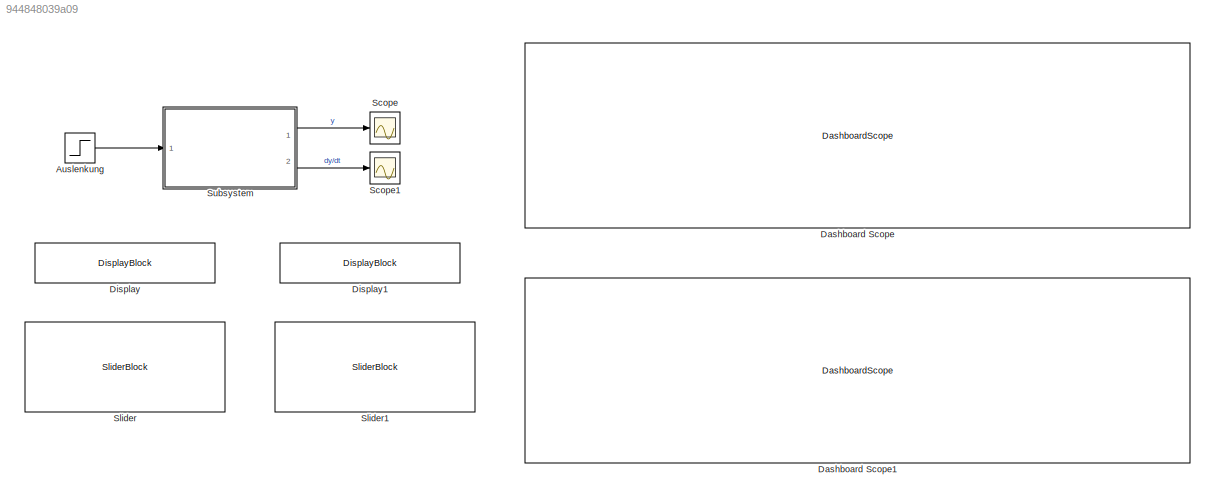
MODEL slx_944848039a09
KIND model
CONFIG AbsTol = auto
CONFIG EnableMultiTasking = off
CONFIG FixedStep = auto
CONFIG MaxStep = auto
CONFIG MinStep = auto
CONFIG RelTol = 1e-3
CONFIG SampleTimeConstraint = Unconstrained
CONFIG SolverName = VariableStepAuto
CONFIG StartTime = 0.0
CONFIG StopTime = 10.0
BLOCK [Step] Auslenkung
  SampleTime = 0
BLOCK [DashboardScope] Dashboard Scope
BLOCK [DashboardScope] Dashboard Scope1
BLOCK [DisplayBlock] Display
  Format = Custom
  FormatString = b = %d
  LabelPosition = Hide
  Transparency = 1
BLOCK [DisplayBlock] Display1
  Format = Custom
  FormatString = a = %d
  LabelPosition = Hide
  Transparency = 1
BLOCK [Scope] Scope
  Floating = off
  NumInputPorts = 1
  Ports = [1]
  ScopeSpecificationString = Simulink.scopes.TimeScopeBlockCfg('CurrentConfiguration', extmgr.ConfigurationSet(extmgr.Configuration('Core','General UI',true),extmgr.Configuration('Core','Source UI',true),extmgr.Configuration('Sources','WiredSimulink',true),extmgr.Configuration('Visuals','Time Domain',true),extmgr.Configuration('Tools','Plot Navigation',true),extmgr.Configuration('Tools','Measurements',true)),'Version','2022a'...<+1ch>
BLOCK [Scope] Scope1
  Floating = off
  NumInputPorts = 1
  Ports = [1]
  ScopeSpecificationString = Simulink.scopes.TimeScopeBlockCfg('CurrentConfiguration', extmgr.ConfigurationSet(extmgr.Configuration('Core','General UI',true),extmgr.Configuration('Core','Source UI',true),extmgr.Configuration('Sources','WiredSimulink',true,'DataLoggingVariableName','ScopeData1'),extmgr.Configuration('Visuals','Time Domain',true),extmgr.Configuration('Tools','Plot Navigation',true),extmgr.Configuration('Tools',...<+40ch>
BLOCK [SliderBlock] Slider
  LabelPosition = Bottom
  ScaleMax = 1
  ScaleMin = -1
BLOCK [SliderBlock] Slider1
  LabelPosition = Bottom
  ScaleMax = 10
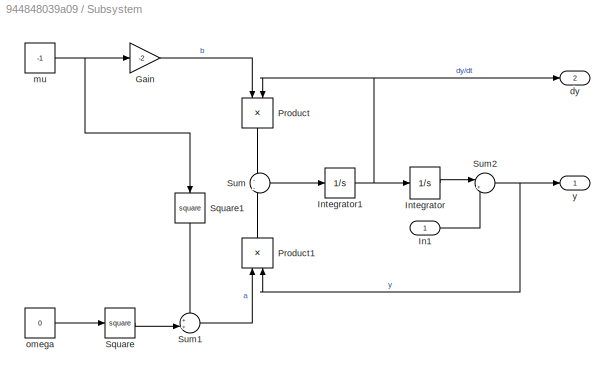
BLOCK [SubSystem] Subsystem
  Ports = [1, 2]
  RequestExecContextInheritance = off
BLOCK [Gain] Subsystem/Gain
  Gain = -2
BLOCK [Inport] Subsystem/In1
BLOCK [Integrator] Subsystem/Integrator
  Ports = [1, 1]
BLOCK [Integrator] Subsystem/Integrator1
  Ports = [1, 1]
BLOCK [Product] Subsystem/Product
  NameLocation = left
  Ports = [2, 1]
BLOCK [Product] Subsystem/Product1
  NameLocation = right
  Ports = [2, 1]
BLOCK [Math] Subsystem/Square
  Operator = square
  Ports = [1, 1]
BLOCK [Math] Subsystem/Square1
  NameLocation = left
  Operator = square
  Ports = [1, 1]
BLOCK [Sum] Subsystem/Sum
  Inputs = -|-
  Ports = [2, 1]
BLOCK [Sum] Subsystem/Sum1
  Inputs = ++|
  Ports = [2, 1]
BLOCK [Sum] Subsystem/Sum2
  Inputs = |++
  Ports = [2, 1]
BLOCK [Outport] Subsystem/dy
  Port = 2
BLOCK [Constant] Subsystem/mu
  Value = -1
BLOCK [Constant] Subsystem/omega
  Value = 0
BLOCK [Outport] Subsystem/y
LINE Auslenkung:1 -> Subsystem:1
LINE Subsystem/Gain:1 -> Subsystem/Product:1
LINE Subsystem/In1:1 -> Subsystem/Sum2:2
NET Subsystem/Integrator1:1 -> Subsystem/Integrator:1, Subsystem/Product:2, Subsystem/dy:1
LINE Subsystem/Integrator:1 -> Subsystem/Sum2:1
LINE Subsystem/Product1:1 -> Subsystem/Sum:2
LINE Subsystem/Product:1 -> Subsystem/Sum:1
LINE Subsystem/Square1:1 -> Subsystem/Sum1:1
LINE Subsystem/Square:1 -> Subsystem/Sum1:2
LINE Subsystem/Sum1:1 -> Subsystem/Product1:1
NET Subsystem/Sum2:1 -> Subsystem/Product1:2, Subsystem/y:1
LINE Subsystem/Sum:1 -> Subsystem/Integrator1:1
NET Subsystem/mu:1 -> Subsystem/Gain:1, Subsystem/Square1:1
LINE Subsystem/omega:1 -> Subsystem/Square:1
LINE Subsystem:1 -> Scope:1
LINE Subsystem:2 -> Scope1:1
note: NET lines group one-source signal fan-out (src -> all destinations, sorted); 1:1 wires keep LINE
